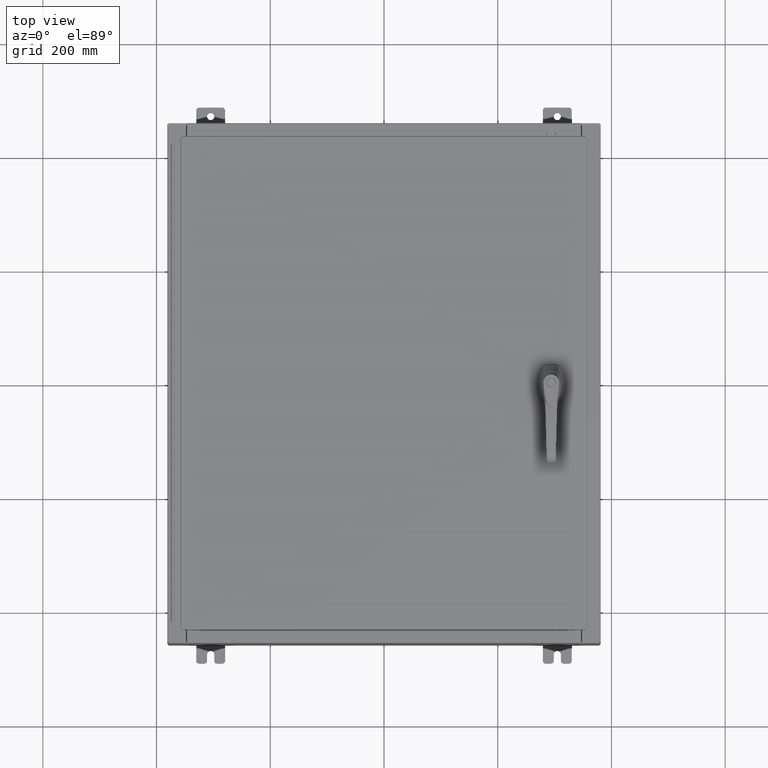
[diagram: clean part render]
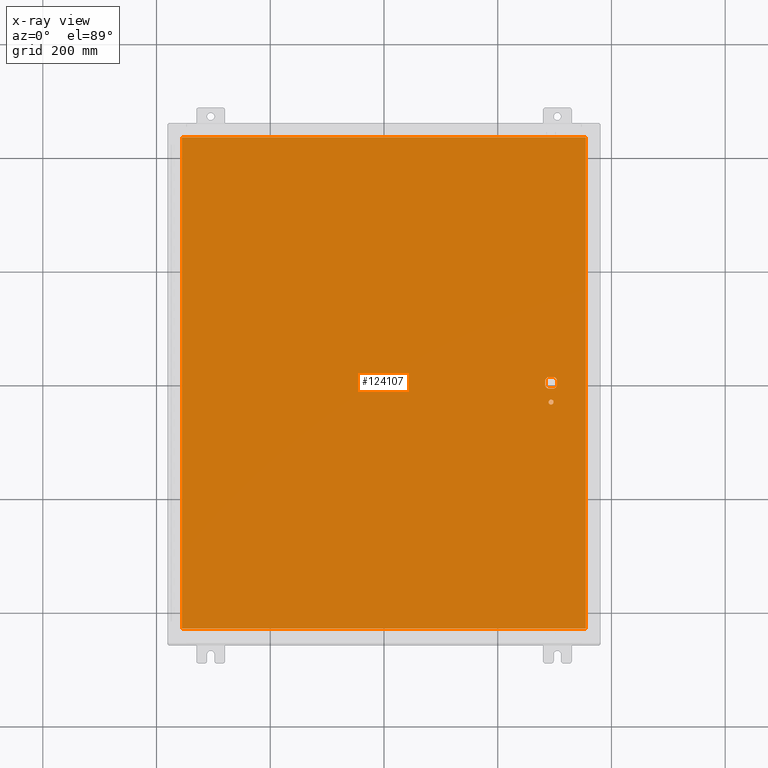
[diagram: x-ray — body ghosted, one internal face saturated and labeled with its STEP entity id]
A machine part, top view, then the same camera in x-ray: the body is ghosted and one INTERNAL B-rep face — a face not visible from any outside direction — is saturated and labeled: STEP entity #124107.
In plain terms, the highlighted planar face has unit normal (0, 0, -1).
Its self-contained STEP definition (entity closure, byte-faithful):
#1059 = ORIENTED_EDGE ( 'NONE', *, *, #106369, .F. ) ;
#1451 = VERTEX_POINT ( 'NONE', #50575 ) ;
#1722 = LINE ( 'NONE', #90227, #75176 ) ;
#2466 = ORIENTED_EDGE ( 'NONE', *, *, #85781, .T. ) ;
#3762 = EDGE_LOOP ( 'NONE', ( #54095, #99591, #47221, #121250, #102072, #72269, #107593, #17026 ) ) ;
#3917 = DIRECTION ( 'NONE',  ( 0.0000000000000000000, -1.000000000000000000, 0.0000000000000000000 ) ) ;
#5985 = FACE_BOUND ( 'NONE', #15769, .T. ) ;
#8796 = CARTESIAN_POINT ( 'NONE',  ( 11.98099999999992000, 0.2002273707563075900, -0.07470000000000003000 ) ) ;
#8975 = FACE_BOUND ( 'NONE', #3762, .T. ) ;
#9006 = VERTEX_POINT ( 'NONE', #110345 ) ;
#9964 = CARTESIAN_POINT ( 'NONE',  ( -13.99030000000000700, -17.00630000000000000, -0.07470000000000019700 ) ) ;
#10153 = VERTEX_POINT ( 'NONE', #94347 ) ;
#10863 = DIRECTION ( 'NONE',  ( -0.0000000000000000000, -0.0000000000000000000, 1.000000000000000000 ) ) ;
#14161 = VERTEX_POINT ( 'NONE', #90722 ) ;
#14535 = AXIS2_PLACEMENT_3D ( 'NONE', #68242, #10863, #77877 ) ;
#15769 = EDGE_LOOP ( 'NONE', ( #2466, #72430 ) ) ;
#17026 = ORIENTED_EDGE ( 'NONE', *, *, #51261, .T. ) ;
#18616 = EDGE_CURVE ( 'NONE', #1451, #35958, #94676, .T. ) ;
#20232 = CIRCLE ( 'NONE', #20672, 0.4499999999999168000 ) ;
#20672 = AXIS2_PLACEMENT_3D ( 'NONE', #56366, #123519, #66010 ) ;
#23183 = CIRCLE ( 'NONE', #58798, 0.1715000000000011500 ) ;
#24086 = CARTESIAN_POINT ( 'NONE',  ( 11.57799999999999400, 0.0000000000000000000, -0.07470000000000003000 ) ) ;
#24241 = VERTEX_POINT ( 'NONE', #74617 ) ;
#27170 = CARTESIAN_POINT ( 'NONE',  ( 11.98099999999992000, -0.2002273707563067300, -0.07470000000000003000 ) ) ;
#28429 = FACE_OUTER_BOUND ( 'NONE', #66576, .T. ) ;
#28804 = PLANE ( 'NONE',  #42110 ) ;
#29236 = DIRECTION ( 'NONE',  ( 0.0000000000000000000, 1.000000000000000000, 0.0000000000000000000 ) ) ;
#30005 = EDGE_CURVE ( 'NONE', #49431, #10153, #101990, .T. ) ;
#30155 = EDGE_CURVE ( 'NONE', #50660, #44812, #44960, .T. ) ;
#30867 = DIRECTION ( 'NONE',  ( -0.0000000000000000000, -0.0000000000000000000, 1.000000000000000000 ) ) ;
#31699 = CARTESIAN_POINT ( 'NONE',  ( 11.77822737075630300, 0.4029999999999250300, -0.07470000000000003000 ) ) ;
#33682 = DIRECTION ( 'NONE',  ( -1.000000000000000000, -1.776356839400246700E-015, 0.0000000000000000000 ) ) ;
#33851 = ORIENTED_EDGE ( 'NONE', *, *, #95477, .F. ) ;
#34547 = EDGE_CURVE ( 'NONE', #24241, #106682, #73995, .T. ) ;
#35958 = VERTEX_POINT ( 'NONE', #27170 ) ;
#38469 = CARTESIAN_POINT ( 'NONE',  ( 0.0000000000000000000, 0.0000000000000000000, -0.07470000000000000300 ) ) ;
#39387 = CIRCLE ( 'NONE', #14535, 0.4499999999999168000 ) ;
#42110 = AXIS2_PLACEMENT_3D ( 'NONE', #38469, #66932, #105511 ) ;
#42766 = LINE ( 'NONE', #9964, #87794 ) ;
#43221 = DIRECTION ( 'NONE',  ( -0.0000000000000000000, -0.0000000000000000000, 1.000000000000000000 ) ) ;
#43434 = ORIENTED_EDGE ( 'NONE', *, *, #115043, .F. ) ;
#44812 = VERTEX_POINT ( 'NONE', #119336 ) ;
#44960 = LINE ( 'NONE', #73794, #118551 ) ;
#47221 = ORIENTED_EDGE ( 'NONE', *, *, #121081, .T. ) ;
#47411 = VECTOR ( 'NONE', #124253, 39.37007874015748100 ) ;
#48088 = CARTESIAN_POINT ( 'NONE',  ( 13.99029999999999200, -17.00630000000000000, -0.07470000000000019700 ) ) ;
#49431 = VERTEX_POINT ( 'NONE', #70852 ) ;
#50404 = VECTOR ( 'NONE', #63362, 39.37007874015748100 ) ;
#50425 = LINE ( 'NONE', #114570, #47411 ) ;
#50575 = CARTESIAN_POINT ( 'NONE',  ( 11.77822737075630300, -0.4029999999999252000, -0.07470000000000003000 ) ) ;
#50660 = VERTEX_POINT ( 'NONE', #31699 ) ;
#51261 = EDGE_CURVE ( 'NONE', #10153, #1451, #78899, .T. ) ;
#51569 = CARTESIAN_POINT ( 'NONE',  ( 11.57799999999999400, -1.338000000000000100, -0.07470000000000003000 ) ) ;
#54095 = ORIENTED_EDGE ( 'NONE', *, *, #18616, .T. ) ;
#54741 = VERTEX_POINT ( 'NONE', #79055 ) ;
#56098 = CARTESIAN_POINT ( 'NONE',  ( -13.99030000000000700, 17.00630000000000000, -0.07470000000000019700 ) ) ;
#56366 = CARTESIAN_POINT ( 'NONE',  ( 11.57799999999999400, 0.0000000000000000000, -0.07470000000000003000 ) ) ;
#58798 = AXIS2_PLACEMENT_3D ( 'NONE', #88319, #30867, #97944 ) ;
#60654 = EDGE_CURVE ( 'NONE', #9006, #79235, #112406, .T. ) ;
#60773 = ORIENTED_EDGE ( 'NONE', *, *, #34547, .F. ) ;
#61227 = DIRECTION ( 'NONE',  ( -1.000000000000000000, 0.0000000000000000000, 0.0000000000000000000 ) ) ;
#63362 = DIRECTION ( 'NONE',  ( 1.000000000000000000, 0.0000000000000000000, 0.0000000000000000000 ) ) ;
#63909 = AXIS2_PLACEMENT_3D ( 'NONE', #51569, #118731, #61227 ) ;
#66010 = DIRECTION ( 'NONE',  ( -1.000000000000000000, -5.329070518200740300E-015, 0.0000000000000000000 ) ) ;
#66576 = EDGE_LOOP ( 'NONE', ( #60773, #1059, #33851, #43434 ) ) ;
#66932 = DIRECTION ( 'NONE',  ( 0.0000000000000000000, 0.0000000000000000000, -1.000000000000000000 ) ) ;
#68242 = CARTESIAN_POINT ( 'NONE',  ( 11.57799999999999400, 0.0000000000000000000, -0.07470000000000003000 ) ) ;
#70852 = CARTESIAN_POINT ( 'NONE',  ( 11.17500000000006600, -0.2002273707563079800, -0.07470000000000003000 ) ) ;
#71719 = LINE ( 'NONE', #76046, #119780 ) ;
#72269 = ORIENTED_EDGE ( 'NONE', *, *, #94217, .T. ) ;
#72430 = ORIENTED_EDGE ( 'NONE', *, *, #60654, .T. ) ;
#72898 = CARTESIAN_POINT ( 'NONE',  ( -13.99030000000000700, -17.00630000000000000, -0.07470000000000000300 ) ) ;
#73794 = CARTESIAN_POINT ( 'NONE',  ( 0.0000000000000000000, 0.4029999999999252000, -0.07470000000000003000 ) ) ;
#73995 = LINE ( 'NONE', #48088, #122028 ) ;
#74354 = AXIS2_PLACEMENT_3D ( 'NONE', #100643, #43221, #110306 ) ;
#74617 = CARTESIAN_POINT ( 'NONE',  ( 13.99029999999999200, -17.00630000000000000, -0.07470000000000000300 ) ) ;
#75176 = VECTOR ( 'NONE', #3917, 39.37007874015748100 ) ;
#76046 = CARTESIAN_POINT ( 'NONE',  ( 13.99029999999999200, 17.00630000000000300, -0.07470000000000129300 ) ) ;
#77877 = DIRECTION ( 'NONE',  ( -1.000000000000000000, -5.329070518200740300E-015, 0.0000000000000000000 ) ) ;
#78899 = LINE ( 'NONE', #111196, #50404 ) ;
#79055 = CARTESIAN_POINT ( 'NONE',  ( 11.17500000000006600, 0.2002273707563075900, -0.07470000000000003000 ) ) ;
#79235 = VERTEX_POINT ( 'NONE', #114135 ) ;
#80091 = AXIS2_PLACEMENT_3D ( 'NONE', #24086, #91128, #33682 ) ;
#82069 = VERTEX_POINT ( 'NONE', #72898 ) ;
#83445 = DIRECTION ( 'NONE',  ( -1.000000000000000000, 0.0000000000000000000, 0.0000000000000000000 ) ) ;
#85690 = DIRECTION ( 'NONE',  ( -1.000000000000000000, -0.0000000000000000000, -0.0000000000000000000 ) ) ;
#85781 = EDGE_CURVE ( 'NONE', #79235, #9006, #23183, .T. ) ;
#87794 = VECTOR ( 'NONE', #114764, 39.37007874015748100 ) ;
#88319 = CARTESIAN_POINT ( 'NONE',  ( 11.57799999999999400, -1.338000000000000100, -0.07470000000000003000 ) ) ;
#90227 = CARTESIAN_POINT ( 'NONE',  ( 11.17500000000006600, 0.0000000000000000000, -0.07470000000000003000 ) ) ;
#90356 = CARTESIAN_POINT ( 'NONE',  ( 13.99029999999999200, 17.00630000000000300, -0.07470000000000000300 ) ) ;
#90722 = CARTESIAN_POINT ( 'NONE',  ( -13.99030000000000700, 17.00630000000000300, -0.07470000000000000300 ) ) ;
#91128 = DIRECTION ( 'NONE',  ( -0.0000000000000000000, -0.0000000000000000000, 1.000000000000000000 ) ) ;
#94217 = EDGE_CURVE ( 'NONE', #54741, #49431, #1722, .T. ) ;
#94347 = CARTESIAN_POINT ( 'NONE',  ( 11.37777262924368300, -0.4029999999999250300, -0.07470000000000003000 ) ) ;
#94676 = CIRCLE ( 'NONE', #80091, 0.4499999999999168000 ) ;
#95477 = EDGE_CURVE ( 'NONE', #14161, #82069, #121544, .T. ) ;
#95969 = VECTOR ( 'NONE', #113602, 39.37007874015748100 ) ;
#97944 = DIRECTION ( 'NONE',  ( -1.000000000000000000, 0.0000000000000000000, 0.0000000000000000000 ) ) ;
#99591 = ORIENTED_EDGE ( 'NONE', *, *, #117266, .F. ) ;
#100643 = CARTESIAN_POINT ( 'NONE',  ( 11.57799999999999400, 0.0000000000000000000, -0.07470000000000003000 ) ) ;
#101990 = CIRCLE ( 'NONE', #74354, 0.4499999999999168000 ) ;
#102072 = ORIENTED_EDGE ( 'NONE', *, *, #107101, .T. ) ;
#102924 = VERTEX_POINT ( 'NONE', #8796 ) ;
#105511 = DIRECTION ( 'NONE',  ( -1.000000000000000000, 0.0000000000000000000, -0.0000000000000000000 ) ) ;
#106369 = EDGE_CURVE ( 'NONE', #82069, #24241, #42766, .T. ) ;
#106682 = VERTEX_POINT ( 'NONE', #90356 ) ;
#107101 = EDGE_CURVE ( 'NONE', #44812, #54741, #20232, .T. ) ;
#107593 = ORIENTED_EDGE ( 'NONE', *, *, #30005, .T. ) ;
#110306 = DIRECTION ( 'NONE',  ( -1.000000000000000000, -1.776356839400246700E-015, 0.0000000000000000000 ) ) ;
#110345 = CARTESIAN_POINT ( 'NONE',  ( 11.40649999999999200, -1.338000000000000100, -0.07470000000000003000 ) ) ;
#111196 = CARTESIAN_POINT ( 'NONE',  ( 0.0000000000000000000, -0.4029999999999252000, -0.07470000000000003000 ) ) ;
#112406 = CIRCLE ( 'NONE', #63909, 0.1715000000000011500 ) ;
#113602 = DIRECTION ( 'NONE',  ( 0.0000000000000000000, -1.000000000000000000, 0.0000000000000000000 ) ) ;
#114135 = CARTESIAN_POINT ( 'NONE',  ( 11.74949999999999400, -1.338000000000000100, -0.07470000000000003000 ) ) ;
#114570 = CARTESIAN_POINT ( 'NONE',  ( 11.98099999999992000, 6.538620706741751200E-014, -0.07470000000000003000 ) ) ;
#114764 = DIRECTION ( 'NONE',  ( 1.000000000000000000, -0.0000000000000000000, -0.0000000000000000000 ) ) ;
#115043 = EDGE_CURVE ( 'NONE', #106682, #14161, #71719, .T. ) ;
#117266 = EDGE_CURVE ( 'NONE', #102924, #35958, #50425, .T. ) ;
#118551 = VECTOR ( 'NONE', #83445, 39.37007874015748100 ) ;
#118731 = DIRECTION ( 'NONE',  ( -0.0000000000000000000, -0.0000000000000000000, 1.000000000000000000 ) ) ;
#119336 = CARTESIAN_POINT ( 'NONE',  ( 11.37777262924368300, 0.4029999999999252000, -0.07470000000000003000 ) ) ;
#119780 = VECTOR ( 'NONE', #85690, 39.37007874015748100 ) ;
#121081 = EDGE_CURVE ( 'NONE', #102924, #50660, #39387, .T. ) ;
#121250 = ORIENTED_EDGE ( 'NONE', *, *, #30155, .T. ) ;
#121544 = LINE ( 'NONE', #56098, #95969 ) ;
#122028 = VECTOR ( 'NONE', #29236, 39.37007874015748100 ) ;
#123519 = DIRECTION ( 'NONE',  ( -0.0000000000000000000, -0.0000000000000000000, 1.000000000000000000 ) ) ;
#124107 = ADVANCED_FACE ( 'NONE', ( #5985, #28429, #8975 ), #28804, .T. ) ;
#124253 = DIRECTION ( 'NONE',  ( 5.457491617345625000E-015, -1.000000000000000000, 0.0000000000000000000 ) ) ;